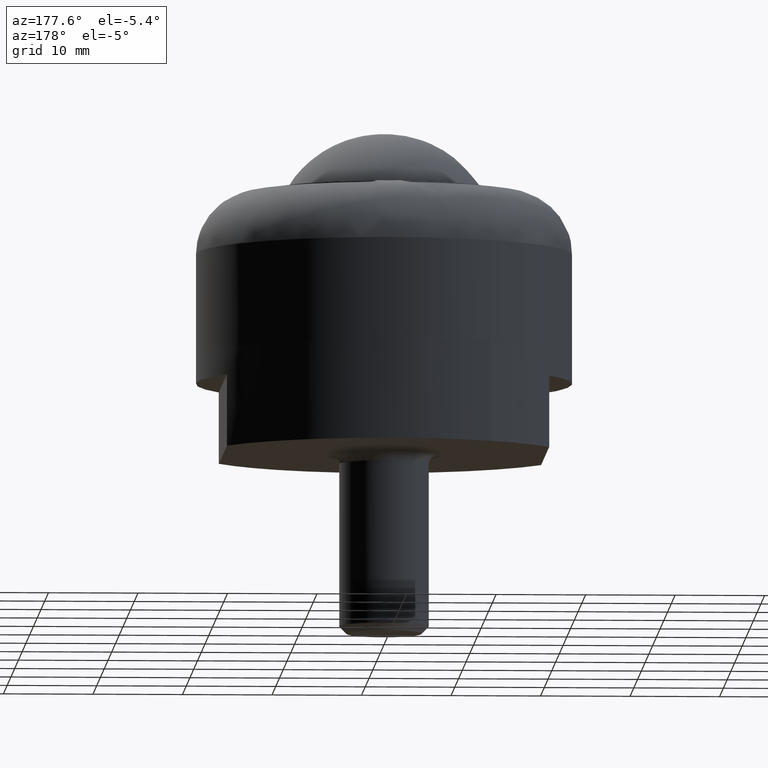
[diagram: clean part render]
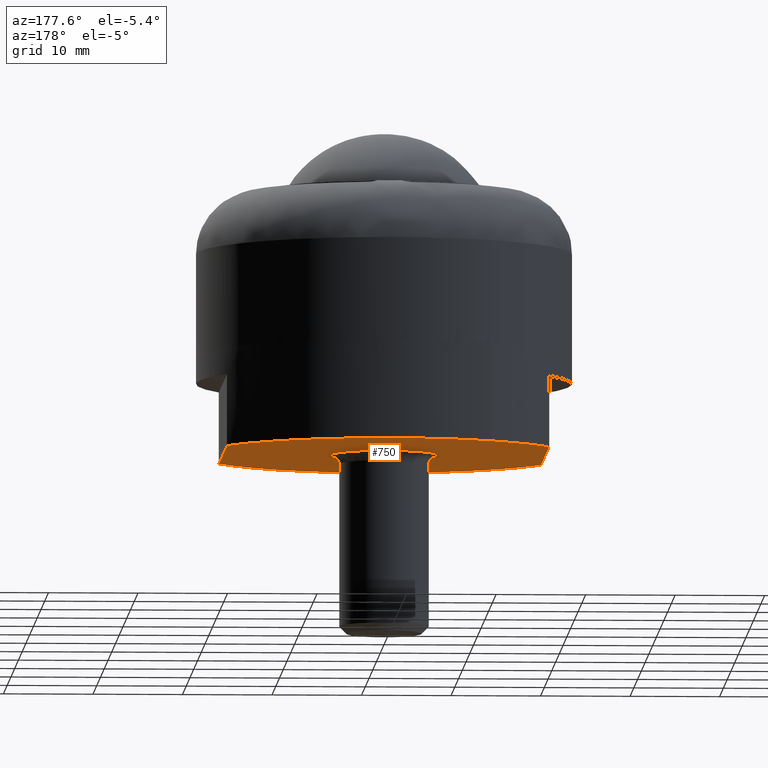
[diagram: same view with one face highlighted and labeled with its STEP entity id]
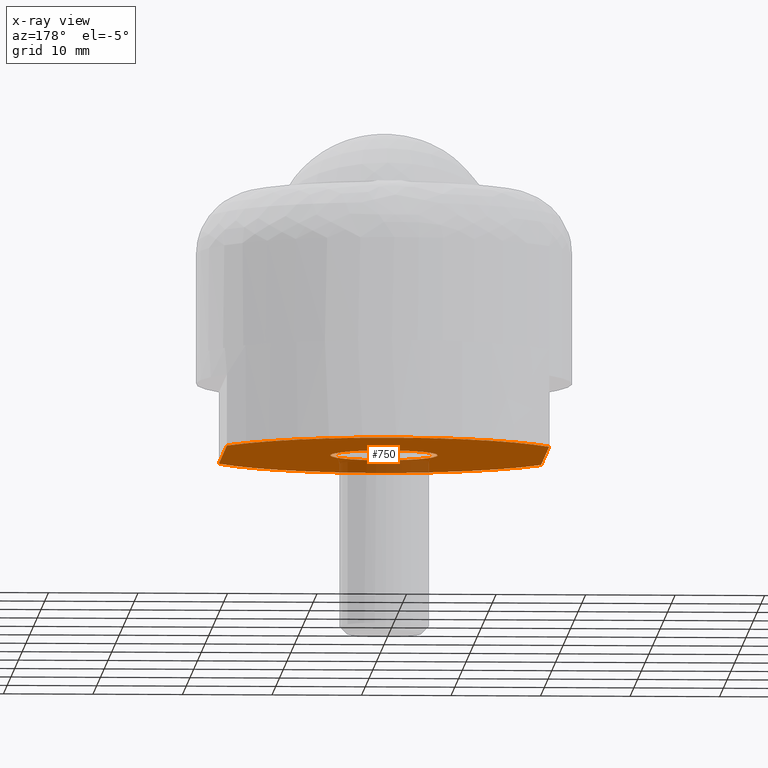
[diagram: x-ray of the same camera — body ghosted, the highlighted face saturated]
A machine part, auxiliary view. The second image highlights one B-rep face of the part: STEP entity #750.
The next image is the same camera in x-ray: the body ghosted, the highlighted face saturated — about 13% of this face is hidden behind the body in this view.
In plain terms, the highlighted face is a freeform B-spline surface patch.
Its self-contained STEP definition (entity closure, byte-faithful):
#441=CARTESIAN_POINT('',(5.999526265152366,0.075396239348814,-11.0));
#442=VERTEX_POINT('',#441);
#454=CARTESIAN_POINT('',(6.000000000000080,0.0,-11.0));
#455=VERTEX_POINT('',#454);
#456=CARTESIAN_POINT('',(5.999526265152366,0.075396239348814,-11.0));
#457=CARTESIAN_POINT('',(6.000000000000080,0.0,-11.0));
#458=QUASI_UNIFORM_CURVE('',1,(#456,#457),.UNSPECIFIED.,.F.,.U.);
#459=EDGE_CURVE('',#442,#455,#458,.T.);
#461=CARTESIAN_POINT('',(0.037663752118435,-5.999881785650003,-11.0));
#462=VERTEX_POINT('',#461);
#463=CARTESIAN_POINT('',(6.000000000000080,0.0,-11.0));
#464=CARTESIAN_POINT('',(6.000011371569967,-0.293341837909248,-11.000000000000030));
#465=CARTESIAN_POINT('',(5.955108455224102,-0.904483226894535,-10.999999999999959));
#466=CARTESIAN_POINT('',(5.773668403779156,-1.693131881075210,-11.000000000000011));
#467=CARTESIAN_POINT('',(5.493330699410811,-2.450601035223218,-10.999999999999940));
#468=CARTESIAN_POINT('',(5.155929553748740,-3.103967857308617,-11.000000000000201));
#469=CARTESIAN_POINT('',(4.692166230367913,-3.765883352524479,-10.999999999999790));
#470=CARTESIAN_POINT('',(4.114291417003869,-4.399452824744384,-11.000000000000121));
#471=CARTESIAN_POINT('',(3.273901965125260,-5.077088948926066,-10.999999999999940));
#472=CARTESIAN_POINT('',(2.224387127223602,-5.619335896234728,-11.000000000000011));
#473=CARTESIAN_POINT('',(1.088408356177498,-5.932461604691080,-11.0));
#474=CARTESIAN_POINT('',(0.379892596724181,-5.997761376046134,-11.0));
#475=CARTESIAN_POINT('',(0.037663752118435,-5.999881785650003,-11.0));
#476=B_SPLINE_CURVE_WITH_KNOTS('',3,(#463,#464,#465,#466,#467,#468,#469,#470,#471,#472,#473,#474,#475),.UNSPECIFIED.,.F.,.U.,(4,1,1,1,1,1,1,1,1,1,4),(6.409003E-009,0.880032496981729,1.833431966514785,2.420131184088171,3.300186153204613,4.033555022429719,4.840259297690706,5.866971790354768,7.260392117715361,8.360461404261757,9.387172391668496),.UNSPECIFIED.);
#477=EDGE_CURVE('',#455,#462,#476,.T.);
#479=CARTESIAN_POINT('',(-5.999526265152366,-0.075396239348812,-11.0));
#480=VERTEX_POINT('',#479);
#481=CARTESIAN_POINT('',(0.037663752118435,-5.999881785650003,-11.0));
#482=CARTESIAN_POINT('',(-0.475696933314771,-6.003250755472427,-11.000000000000020));
#483=CARTESIAN_POINT('',(-1.185097669426799,-5.916019061883469,-11.0));
#484=CARTESIAN_POINT('',(-2.143945063061523,-5.620092652058728,-11.0));
#485=CARTESIAN_POINT('',(-2.949139758313010,-5.259110447439910,-11.000000000000030));
#486=CARTESIAN_POINT('',(-3.702963302932042,-4.751492910287759,-10.999999999999989));
#487=CARTESIAN_POINT('',(-4.368565732602008,-4.137047868759453,-11.000000000000020));
#488=CARTESIAN_POINT('',(-4.824872164258571,-3.592028741090125,-11.000000000000011));
#489=CARTESIAN_POINT('',(-5.290619234102359,-2.873086923560612,-10.999999999999959));
#490=CARTESIAN_POINT('',(-5.662441649349259,-2.071370632053239,-11.000000000000149));
#491=CARTESIAN_POINT('',(-5.930313434232077,-1.076855629529256,-10.999999999999741));
#492=CARTESIAN_POINT('',(-5.995251995688572,-0.417603254820140,-11.000000000000290));
#493=CARTESIAN_POINT('',(-5.999526265152366,-0.075396239348812,-11.0));
#494=B_SPLINE_CURVE_WITH_KNOTS('',3,(#481,#482,#483,#484,#485,#486,#487,#488,#489,#490,#491,#492,#493),.UNSPECIFIED.,.F.,.U.,(4,1,1,1,1,1,1,1,1,1,4),(6.405307E-009,1.540068568087309,2.126764332402080,3.006812942226854,4.180196765906803,4.840223087298297,5.720254393919778,6.306951926339337,7.407012802428239,8.360398858885290,9.387102165503377),.UNSPECIFIED.);
#495=EDGE_CURVE('',#462,#480,#494,.T.);
#547=CARTESIAN_POINT('',(-6.000000000000080,0.0,-11.0));
#548=VERTEX_POINT('',#547);
#549=CARTESIAN_POINT('',(-5.999526265152366,-0.075396239348812,-11.0));
#550=CARTESIAN_POINT('',(-6.000000000000080,0.0,-11.0));
#551=QUASI_UNIFORM_CURVE('',1,(#549,#550),.UNSPECIFIED.,.F.,.U.);
#552=EDGE_CURVE('',#480,#548,#551,.T.);
#554=CARTESIAN_POINT('',(-0.037663752118447,5.999881785650004,-11.0));
#555=VERTEX_POINT('',#554);
#556=CARTESIAN_POINT('',(-6.000000000000080,0.0,-11.0));
#557=CARTESIAN_POINT('',(-6.000040981355146,0.391128742917903,-11.000000000000030));
#558=CARTESIAN_POINT('',(-5.925649473737292,1.148926999549996,-10.999999999999989));
#559=CARTESIAN_POINT('',(-5.626597232030779,2.161269372784050,-11.000000000000011));
#560=CARTESIAN_POINT('',(-5.230252548791677,2.977009006295810,-11.000000000000011));
#561=CARTESIAN_POINT('',(-4.728601846889482,3.731670850737985,-11.0));
#562=CARTESIAN_POINT('',(-4.149592406732831,4.366448106046925,-11.0));
#563=CARTESIAN_POINT('',(-3.425059859869974,4.950578448707073,-11.000000000000011));
#564=CARTESIAN_POINT('',(-2.772230545992640,5.340098898479181,-11.000000000000080));
#565=CARTESIAN_POINT('',(-1.964024809339141,5.691033892949470,-10.999999999999959));
#566=CARTESIAN_POINT('',(-1.088417694615356,5.932486822570311,-11.000000000000011));
#567=CARTESIAN_POINT('',(-0.379892057664357,5.997755470917457,-11.000000000000011));
#568=CARTESIAN_POINT('',(-0.037663752118447,5.999881785650004,-11.0));
#569=B_SPLINE_CURVE_WITH_KNOTS('',3,(#556,#557,#558,#559,#560,#561,#562,#563,#564,#565,#566,#567,#568),.UNSPECIFIED.,.F.,.U.,(4,1,1,1,1,1,1,1,1,1,4),(6.408039E-009,1.173385829084552,2.273455462549268,3.153511013657369,3.886881945000849,4.986931951292609,5.720297187792468,6.673690376725869,7.260392117715327,8.360461404261752,9.387172391668486),.UNSPECIFIED.);
#570=EDGE_CURVE('',#548,#555,#569,.T.);
#572=CARTESIAN_POINT('',(-0.037663752118447,5.999881785650004,-11.0));
#573=CARTESIAN_POINT('',(0.475695000521085,6.003254652801600,-11.0));
#574=CARTESIAN_POINT('',(1.282954098929209,5.903985818459142,-11.000000000000011));
#575=CARTESIAN_POINT('',(2.235698041878186,5.584230826793601,-11.000000000000011));
#576=CARTESIAN_POINT('',(2.942297523015622,5.246432044859050,-10.999999999999989));
#577=CARTESIAN_POINT('',(3.624078920434881,4.811179675182881,-11.000000000000030));
#578=CARTESIAN_POINT('',(4.231947719981083,4.276982256128305,-10.999999999999920));
#579=CARTESIAN_POINT('',(4.765403049644149,3.670563198387054,-11.000000000000190));
#580=CARTESIAN_POINT('',(5.193979962178595,3.043118782396940,-10.999999999999581));
#581=CARTESIAN_POINT('',(5.627969295740512,2.164400523451112,-11.000000000000229));
#582=CARTESIAN_POINT('',(5.920739138427109,1.174538920542146,-10.999999999999821));
#583=CARTESIAN_POINT('',(5.995243699097972,0.417600640259857,-11.000000000000130));
#584=CARTESIAN_POINT('',(5.999526265152366,0.075396239348814,-11.0));
#585=B_SPLINE_CURVE_WITH_KNOTS('',3,(#572,#573,#574,#575,#576,#577,#578,#579,#580,#581,#582,#583,#584),.UNSPECIFIED.,.F.,.U.,(4,1,1,1,1,1,1,1,1,1,4),(6.405765E-009,1.540068568087656,2.420113078884349,3.006812942227072,3.886852866953407,4.840223087298406,5.426909281688477,6.306951926339419,7.113663459649303,8.360398858885294,9.387102165503388),.UNSPECIFIED.);
#586=EDGE_CURVE('',#555,#442,#585,.T.);
#657=CARTESIAN_POINT('',(-19.798199930225021,23.094010765019050,-11.0));
#658=CARTESIAN_POINT('',(19.798200895820258,23.094010765019050,-11.0));
#659=CARTESIAN_POINT('',(-19.798199930225021,-23.094034046593290,-11.0));
#660=CARTESIAN_POINT('',(19.798200895820258,-23.094034046593290,-11.0));
#661=B_SPLINE_SURFACE_WITH_KNOTS('',1,1,((#657,#659),(#658,#660)),.UNSPECIFIED.,.F.,.F.,.U.,(2,2),(2,2),(0.0,39.596400826045283),(0.0,46.188044811612343),.UNSPECIFIED.);
#662=CARTESIAN_POINT('',(-18.0,10.816653826392081,-11.0));
#663=VERTEX_POINT('',#662);
#664=CARTESIAN_POINT('',(-18.0,-10.816653826392081,-11.0));
#665=VERTEX_POINT('',#664);
#666=CARTESIAN_POINT('',(-18.0,10.816653826392081,-11.0));
#667=CARTESIAN_POINT('',(-18.0,-10.816653826392081,-11.0));
#668=QUASI_UNIFORM_CURVE('',1,(#666,#667),.UNSPECIFIED.,.F.,.U.);
#669=EDGE_CURVE('',#663,#665,#668,.T.);
#670=ORIENTED_EDGE('',*,*,#669,.F.);
#671=CARTESIAN_POINT('',(-11.282451241010310,17.711755813420240,-11.0));
#672=VERTEX_POINT('',#671);
#673=CARTESIAN_POINT('',(-18.0,10.816653826392081,-11.0));
#674=CARTESIAN_POINT('',(-17.296608719263361,11.987483949395140,-11.000000000000050));
#675=CARTESIAN_POINT('',(-15.948061794842941,13.803350764913310,-10.999999999999821));
#676=CARTESIAN_POINT('',(-13.622083554567590,16.064729306395162,-11.000000000000281));
#677=CARTESIAN_POINT('',(-12.114470322565211,17.181814762016469,-10.999999999999890));
#678=CARTESIAN_POINT('',(-11.282451241010310,17.711755813420240,-11.0));
#679=B_SPLINE_CURVE_WITH_KNOTS('',3,(#673,#674,#675,#676,#677,#678),.UNSPECIFIED.,.F.,.U.,(4,1,1,4),(1.913980E-009,4.097575859319441,6.753404005191744,9.712762553861943),.UNSPECIFIED.);
#680=EDGE_CURVE('',#663,#672,#679,.T.);
#681=ORIENTED_EDGE('',*,*,#680,.T.);
#682=CARTESIAN_POINT('',(18.0,10.816653826392120,-11.0));
#683=VERTEX_POINT('',#682);
#684=CARTESIAN_POINT('',(-11.282451241010310,17.711755813420240,-11.0));
#685=CARTESIAN_POINT('',(-10.398617312491551,18.274826690416649,-10.999999999999959));
#686=CARTESIAN_POINT('',(-8.893696775384891,19.081929295308569,-11.000000000000080));
#687=CARTESIAN_POINT('',(-6.245383612033816,20.111283945079698,-10.999999999999970));
#688=CARTESIAN_POINT('',(-3.523901937065317,20.785427793773000,-11.000000000000020));
#689=CARTESIAN_POINT('',(-0.428277141133890,21.064720138941109,-10.999999999999950));
#690=CARTESIAN_POINT('',(2.194450967612887,20.932517482576081,-11.000000000000030));
#691=CARTESIAN_POINT('',(4.393224825115886,20.564630318690352,-11.0));
#692=CARTESIAN_POINT('',(6.295807054611958,20.066226619374220,-10.999999999999931));
#693=CARTESIAN_POINT('',(8.349411166808249,19.317158596224409,-11.000000000000840));
#694=CARTESIAN_POINT('',(10.268348863708191,18.361492877737820,-10.999999999998170));
#695=CARTESIAN_POINT('',(12.076907587448479,17.215008132835599,-11.000000000001290));
#696=CARTESIAN_POINT('',(13.844598225997730,15.856058308935250,-10.999999999999170));
#697=CARTESIAN_POINT('',(15.973060839159910,13.775816327433050,-11.000000000000680));
#698=CARTESIAN_POINT('',(17.325401745393251,11.939546374738210,-10.999999999999639));
#699=CARTESIAN_POINT('',(18.0,10.816653826392120,-11.0));
#700=B_SPLINE_CURVE_WITH_KNOTS('',3,(#684,#685,#686,#687,#688,#689,#690,#691,#692,#693,#694,#695,#696,#697,#698,#699),.UNSPECIFIED.,.F.,.U.,(4,1,1,1,1,1,1,1,1,1,1,1,1,4),(8.026952E-009,3.143861628440341,5.108771982977832,8.514635629874920,11.527508196404440,14.409394490735821,16.374311669926101,18.208204599374000,20.304128888278989,22.924014369826320,24.626944645822810,26.722859023062242,29.604736216550450,33.534562732802009),.UNSPECIFIED.);
#701=EDGE_CURVE('',#672,#683,#700,.T.);
#702=ORIENTED_EDGE('',*,*,#701,.T.);
#703=CARTESIAN_POINT('',(18.0,-10.816653826392100,-11.0));
#704=VERTEX_POINT('',#703);
#705=CARTESIAN_POINT('',(18.0,-10.816653826392100,-11.0));
#706=CARTESIAN_POINT('',(18.0,10.816653826392120,-11.0));
#707=QUASI_UNIFORM_CURVE('',1,(#705,#706),.UNSPECIFIED.,.F.,.U.);
#708=EDGE_CURVE('',#704,#683,#707,.T.);
#709=ORIENTED_EDGE('',*,*,#708,.F.);
#710=CARTESIAN_POINT('',(11.282451241010230,-17.711755813420250,-11.0));
#711=VERTEX_POINT('',#710);
#712=CARTESIAN_POINT('',(18.0,-10.816653826392100,-11.0));
#713=CARTESIAN_POINT('',(17.296623862411732,-11.987496471982819,-11.0));
#714=CARTESIAN_POINT('',(15.978346586509900,-13.762526921774731,-11.0));
#715=CARTESIAN_POINT('',(13.661092788767800,-16.031812591523462,-11.0));
#716=CARTESIAN_POINT('',(12.157141990503860,-17.154644733665929,-11.000000000000041));
#717=CARTESIAN_POINT('',(11.282451241010230,-17.711755813420250,-11.0));
#718=B_SPLINE_CURVE_WITH_KNOTS('',3,(#712,#713,#714,#715,#716,#717),.UNSPECIFIED.,.F.,.U.,(4,1,1,4),(1.917311E-009,4.097575859321020,6.601641975320716,9.712762553861989),.UNSPECIFIED.);
#719=EDGE_CURVE('',#704,#711,#718,.T.);
#720=ORIENTED_EDGE('',*,*,#719,.T.);
#721=CARTESIAN_POINT('',(11.282451241010230,-17.711755813420250,-11.0));
#722=CARTESIAN_POINT('',(10.545915039776331,-18.180956517227010,-10.999999999999989));
#723=CARTESIAN_POINT('',(8.861027808877799,-19.111948403958809,-11.000000000000020));
#724=CARTESIAN_POINT('',(6.286722169602776,-20.103282747417310,-11.0));
#725=CARTESIAN_POINT('',(3.392969381858713,-20.791393399507658,-10.999999999999959));
#726=CARTESIAN_POINT('',(0.690089117620872,-21.052309043560900,-11.000000000000121));
#727=CARTESIAN_POINT('',(-2.019461114126639,-20.949568661728829,-10.999999999999959));
#728=CARTESIAN_POINT('',(-4.224109278274835,-20.608947809464912,-11.000000000000011));
#729=CARTESIAN_POINT('',(-6.295808445508635,-20.066229137119379,-11.000000000000060));
#730=CARTESIAN_POINT('',(-8.226182857611830,-19.362085016724912,-11.000000000000110));
#731=CARTESIAN_POINT('',(-10.467544489238490,-18.271962736875292,-10.999999999999639));
#732=CARTESIAN_POINT('',(-12.554460240699060,-16.902980739679641,-11.000000000000069));
#733=CARTESIAN_POINT('',(-14.351957074183360,-15.372430012093810,-10.999999999999980));
#734=CARTESIAN_POINT('',(-16.181095171739688,-13.493292596633280,-10.999999999999890));
#735=CARTESIAN_POINT('',(-17.325410690191472,-11.939556709921080,-11.000000000000510));
#736=CARTESIAN_POINT('',(-18.0,-10.816653826392081,-11.0));
#737=B_SPLINE_CURVE_WITH_KNOTS('',3,(#721,#722,#723,#724,#725,#726,#727,#728,#729,#730,#731,#732,#733,#734,#735,#736),.UNSPECIFIED.,.F.,.U.,(4,1,1,1,1,1,1,1,1,1,1,1,1,4),(8.013217E-009,2.619873732768184,5.763748982863849,8.252646212254462,11.527508196396759,13.885421138348219,16.374311669921241,18.208204599370049,20.304128888275979,22.531026935361648,25.674901322539071,27.770810105180541,29.604736216549512,33.534562732801881),.UNSPECIFIED.);
#738=EDGE_CURVE('',#711,#665,#737,.T.);
#739=ORIENTED_EDGE('',*,*,#738,.T.);
#740=EDGE_LOOP('',(#670,#681,#702,#709,#720,#739));
#741=FACE_OUTER_BOUND('',#740,.T.);
#742=ORIENTED_EDGE('',*,*,#552,.F.);
#743=ORIENTED_EDGE('',*,*,#495,.F.);
#744=ORIENTED_EDGE('',*,*,#477,.F.);
#745=ORIENTED_EDGE('',*,*,#459,.F.);
#746=ORIENTED_EDGE('',*,*,#586,.F.);
#747=ORIENTED_EDGE('',*,*,#570,.F.);
#748=EDGE_LOOP('',(#742,#743,#744,#745,#746,#747));
#749=FACE_BOUND('',#748,.T.);
#750=ADVANCED_FACE('',(#741,#749),#661,.T.);